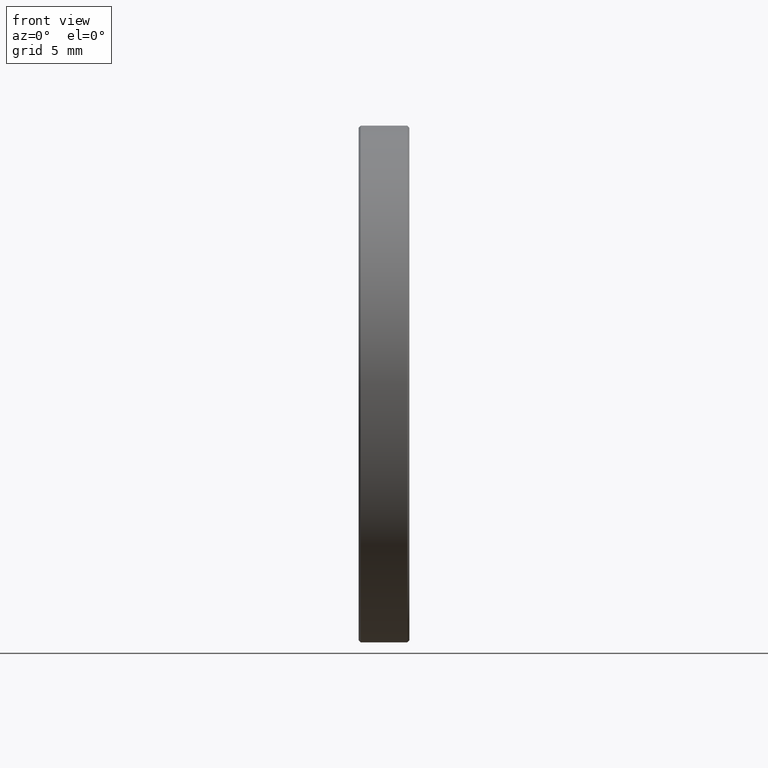
[diagram: clean part render]
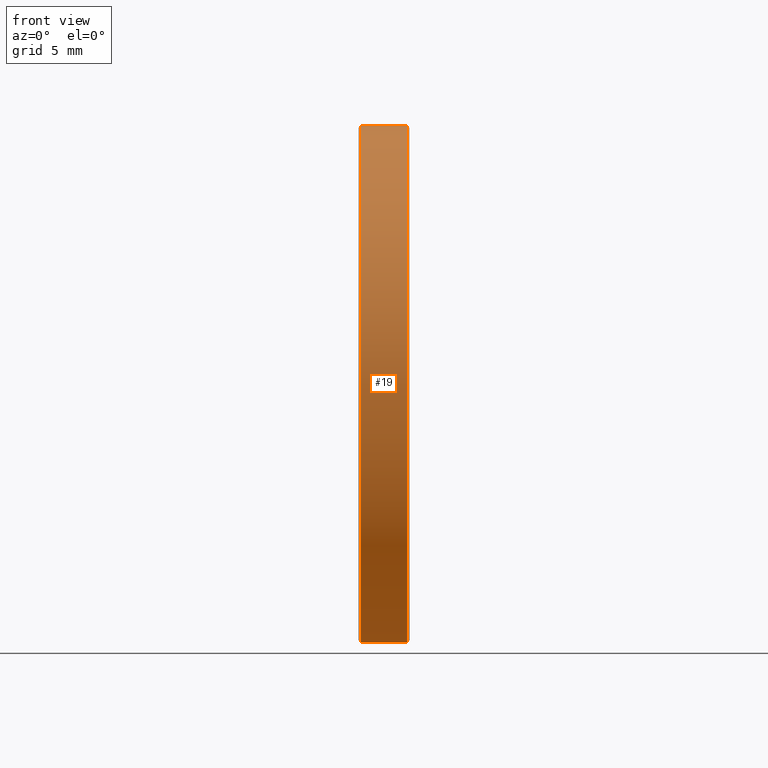
[diagram: same view with one face highlighted and labeled with its STEP entity id]
A machine part, front view. The second image highlights one B-rep face of the part: STEP entity #19.
In plain terms, the highlighted cylindrical surface (partial cylindrical patch) has radius 12.7 mm, axis along (-1, -0, -0).
Its self-contained STEP definition (entity closure, byte-faithful):
#12 = CARTESIAN_POINT ( 'NONE',  ( -2.434863851253203482, 1.436758841085141070, 38.09999999999999432 ) ) ;
#13 = ORIENTED_EDGE ( 'NONE', *, *, #750, .T. ) ;
#15 = DIRECTION ( 'NONE',  ( 0.0000000000000000000, 0.0000000000000000000, 1.000000000000000000 ) ) ;
#19 = ADVANCED_FACE ( 'NONE', ( #532 ), #782, .T. ) ;
#41 = AXIS2_PLACEMENT_3D ( 'NONE', #694, #304, #565 ) ;
#42 = VERTEX_POINT ( 'NONE', #732 ) ;
#141 = DIRECTION ( 'NONE',  ( -1.000000000000000000, -0.0000000000000000000, -0.0000000000000000000 ) ) ;
#146 = VERTEX_POINT ( 'NONE', #299 ) ;
#187 = VECTOR ( 'NONE', #587, 1000.000000000000000 ) ;
#197 = AXIS2_PLACEMENT_3D ( 'NONE', #722, #141, #15 ) ;
#265 = ORIENTED_EDGE ( 'NONE', *, *, #776, .F. ) ;
#299 = CARTESIAN_POINT ( 'NONE',  ( -2.534863851253199574, 1.436758841085141070, 38.09999999999999432 ) ) ;
#300 = LINE ( 'NONE', #834, #187 ) ;
#304 = DIRECTION ( 'NONE',  ( -1.000000000000000000, 0.0000000000000000000, 0.0000000000000000000 ) ) ;
#338 = VERTEX_POINT ( 'NONE', #370 ) ;
#370 = CARTESIAN_POINT ( 'NONE',  ( -4.834863851253204281, 1.436758841085141070, 12.69999999999999929 ) ) ;
#396 = DIRECTION ( 'NONE',  ( -1.000000000000000000, -0.0000000000000000000, -0.0000000000000000000 ) ) ;
#411 = ORIENTED_EDGE ( 'NONE', *, *, #610, .T. ) ;
#434 = EDGE_LOOP ( 'NONE', ( #265, #411, #625, #13 ) ) ;
#439 = CARTESIAN_POINT ( 'NONE',  ( -4.834863851253204281, 1.436758841085141070, 25.39999999999999858 ) ) ;
#476 = LINE ( 'NONE', #12, #542 ) ;
#492 = VERTEX_POINT ( 'NONE', #500 ) ;
#500 = CARTESIAN_POINT ( 'NONE',  ( -4.834863851253204281, 1.436758841085142402, 38.09999999999999432 ) ) ;
#532 = FACE_OUTER_BOUND ( 'NONE', #434, .T. ) ;
#542 = VECTOR ( 'NONE', #396, 1000.000000000000000 ) ;
#565 = DIRECTION ( 'NONE',  ( 0.0000000000000000000, 0.0000000000000000000, -1.000000000000000000 ) ) ;
#587 = DIRECTION ( 'NONE',  ( -1.000000000000000000, -0.0000000000000000000, -0.0000000000000000000 ) ) ;
#593 = CIRCLE ( 'NONE', #41, 12.69999999999999929 ) ;
#605 = CIRCLE ( 'NONE', #620, 12.69999999999999929 ) ;
#610 = EDGE_CURVE ( 'NONE', #42, #146, #593, .T. ) ;
#620 = AXIS2_PLACEMENT_3D ( 'NONE', #439, #638, #703 ) ;
#625 = ORIENTED_EDGE ( 'NONE', *, *, #835, .T. ) ;
#638 = DIRECTION ( 'NONE',  ( 1.000000000000000000, -0.0000000000000000000, -0.0000000000000000000 ) ) ;
#694 = CARTESIAN_POINT ( 'NONE',  ( -2.534863851253199574, 1.436758841085141070, 25.39999999999999858 ) ) ;
#703 = DIRECTION ( 'NONE',  ( 0.0000000000000000000, 0.0000000000000000000, -1.000000000000000000 ) ) ;
#722 = CARTESIAN_POINT ( 'NONE',  ( -2.434863851253203482, 1.436758841085141070, 25.39999999999999858 ) ) ;
#732 = CARTESIAN_POINT ( 'NONE',  ( -2.534863851253199574, 1.436758841085142402, 12.69999999999999929 ) ) ;
#750 = EDGE_CURVE ( 'NONE', #492, #338, #605, .T. ) ;
#776 = EDGE_CURVE ( 'NONE', #42, #338, #300, .T. ) ;
#782 = CYLINDRICAL_SURFACE ( 'NONE', #197, 12.69999999999999574 ) ;
#834 = CARTESIAN_POINT ( 'NONE',  ( -2.434863851253203482, 1.436758841085142402, 12.69999999999999929 ) ) ;
#835 = EDGE_CURVE ( 'NONE', #146, #492, #476, .T. ) ;